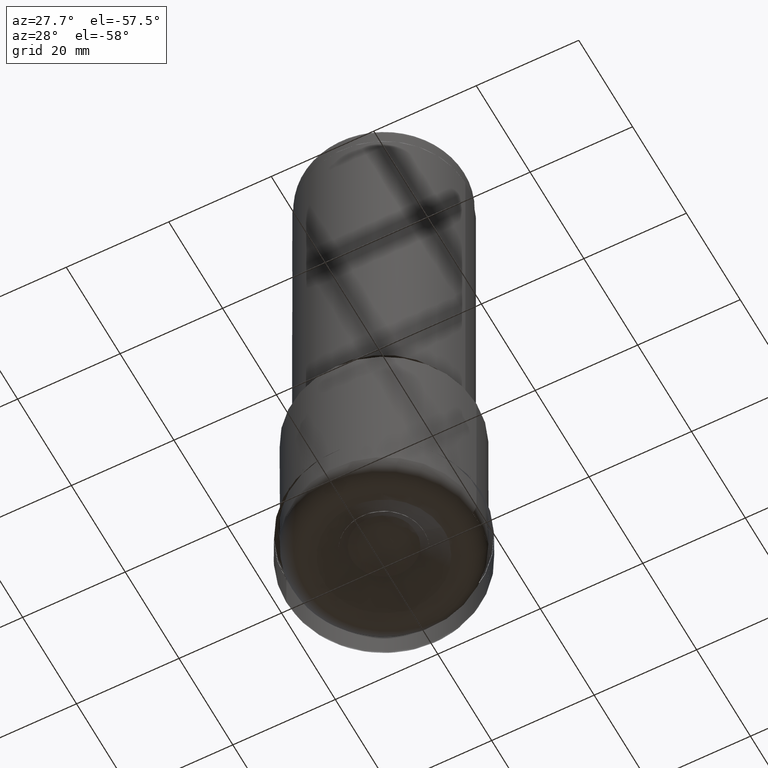
[diagram: clean part render]
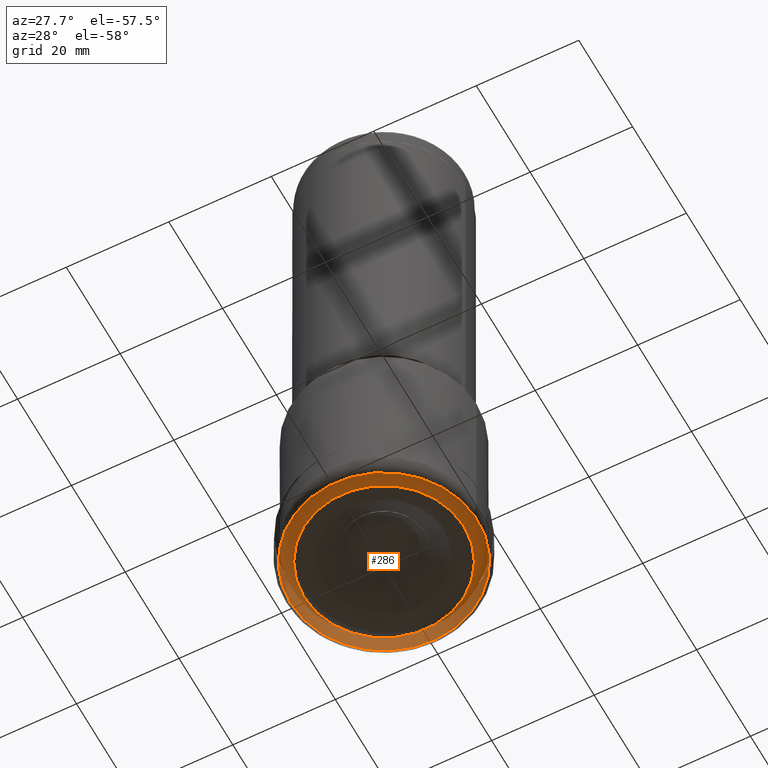
[diagram: same view with one face highlighted and labeled with its STEP entity id]
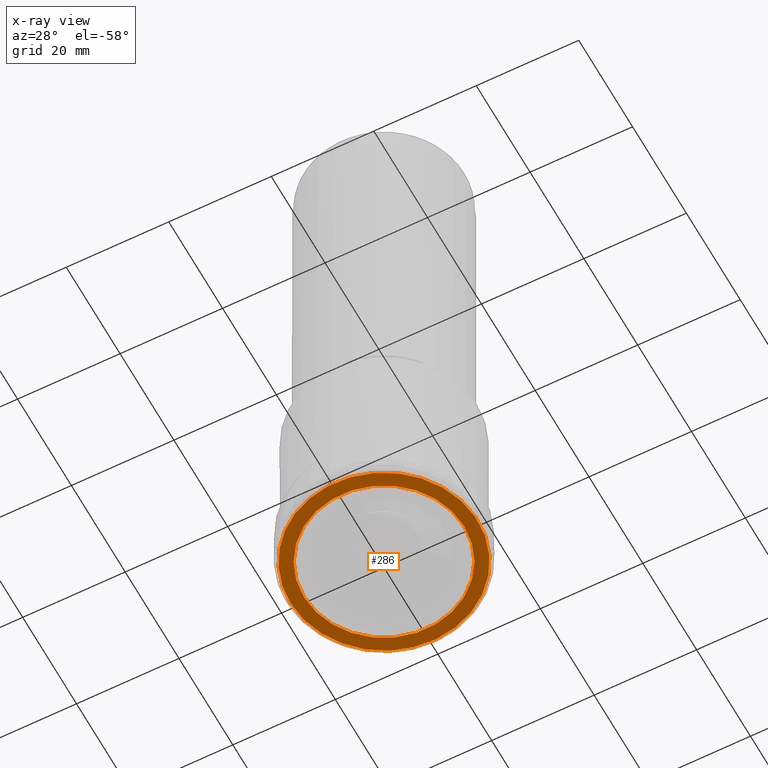
[diagram: x-ray of the same camera — body ghosted, the highlighted face saturated]
A machine part, auxiliary view. The second image highlights one B-rep face of the part: STEP entity #286.
The next image is the same camera in x-ray: the body ghosted, the highlighted face saturated — about 0% of this face is hidden behind the body in this view.
In plain terms, the highlighted face is a SurfaceOfRevolution surface.
Its self-contained STEP definition (entity closure, byte-faithful):
#145=SURFACE_OF_REVOLUTION('',#1025,#183);
#183=AXIS1_PLACEMENT('',#2605,#1317);
#286=ADVANCED_FACE('',(#430,#431),#145,.F.);
#430=FACE_BOUND('',#552,.T.);
#431=FACE_BOUND('',#553,.T.);
#552=EDGE_LOOP('',(#720));
#553=EDGE_LOOP('',(#721));
#720=ORIENTED_EDGE('',*,*,#883,.T.);
#721=ORIENTED_EDGE('',*,*,#884,.F.);
#799=VERTEX_POINT('',#2589);
#800=VERTEX_POINT('',#2598);
#883=EDGE_CURVE('',#799,#799,#935,.T.);
#884=EDGE_CURVE('',#800,#800,#936,.T.);
#935=CIRCLE('',#1107,15.6151302441013);
#936=CIRCLE('',#1108,18.2637296894801);
#1025=B_SPLINE_CURVE_WITH_KNOTS('',5,(#2599,#2600,#2601,#2602,#2603,#2604),
 .UNSPECIFIED.,.F.,.F.,(6,6),(0.,1.),.UNSPECIFIED.);
#1107=AXIS2_PLACEMENT_3D('',#2588,#1312,#1313);
#1108=AXIS2_PLACEMENT_3D('',#2597,#1315,#1316);
#1312=DIRECTION('',(0.,0.,-1.));
#1313=DIRECTION('',(-1.,0.,0.));
#1315=DIRECTION('',(0.,0.,-1.));
#1316=DIRECTION('',(-1.,0.,0.));
#1317=DIRECTION('',(0.,0.,-1.));
#2588=CARTESIAN_POINT('',(0.,0.,0.0229599643727682));
#2589=CARTESIAN_POINT('',(-15.6151302441013,0.,0.0229599643727682));
#2597=CARTESIAN_POINT('',(0.,0.,8.32953241037908E-15));
#2598=CARTESIAN_POINT('',(-18.2637296894801,0.,8.32953241037908E-15));
#2599=CARTESIAN_POINT('',(-9.13186484473878,-15.8168538789395,4.4846953485767E-14));
#2600=CARTESIAN_POINT('',(-8.86699181013939,-15.3580803254584,-0.000381388749490024));
#2601=CARTESIAN_POINT('',(-8.60211783103926,-14.899305136054,0.00179458866925012));
#2602=CARTESIAN_POINT('',(-8.33725064962035,-14.4405417205789,0.00645127307601693));
#2603=CARTESIAN_POINT('',(-8.07239736984298,-13.9818023834533,0.013524889342159));
#2604=CARTESIAN_POINT('',(-7.80756512205072,-13.5230994747944,0.0229599643727682));
#2605=CARTESIAN_POINT('',(0.,0.,0.));